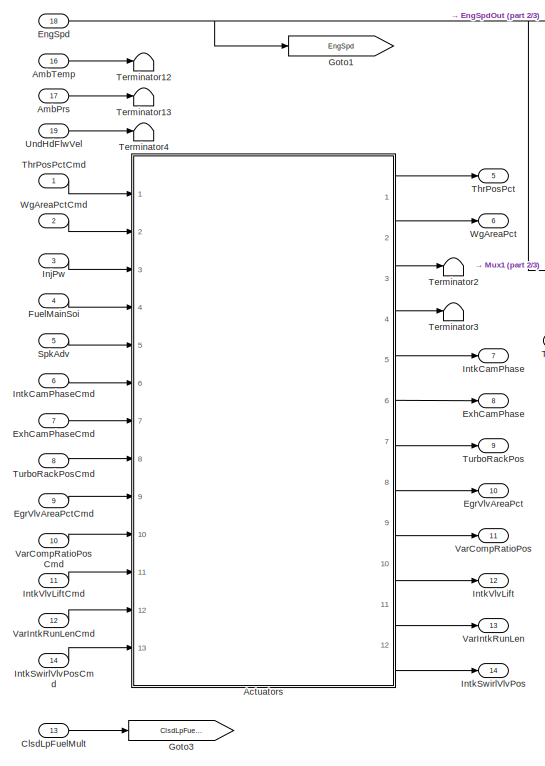
[diagram: root canvas - part 1/3, middle left region]
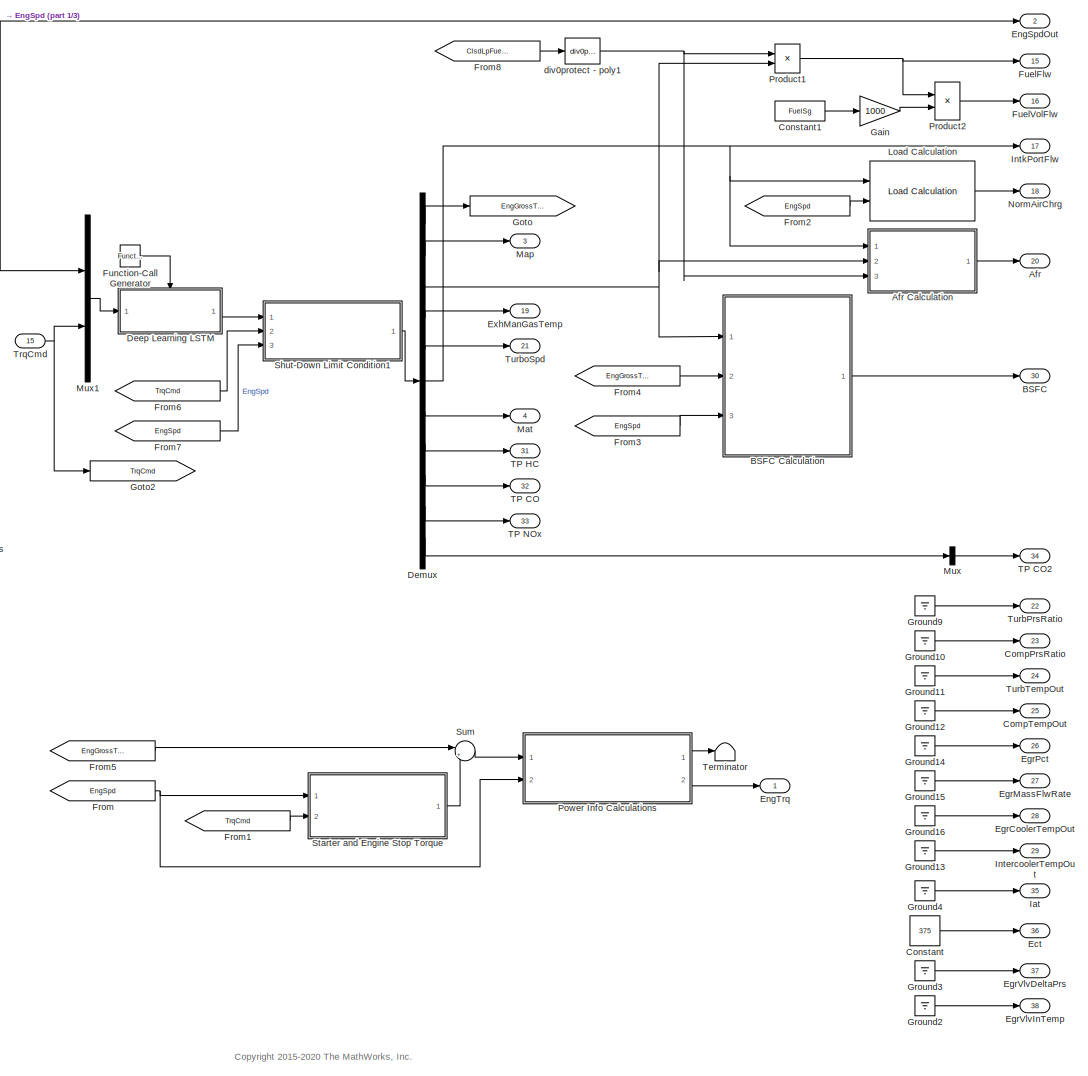
[diagram: root canvas - part 2/3, center side, full height]
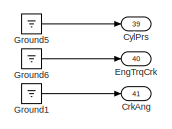
[diagram: root canvas - part 3/3, middle right region]
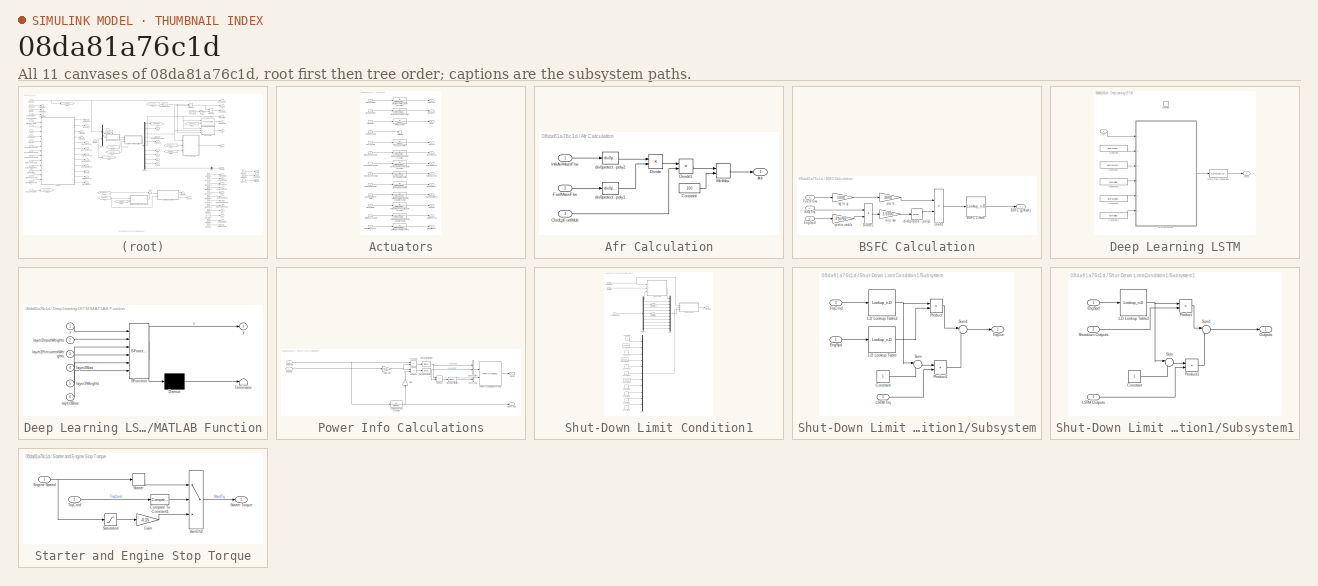
[diagram: thumbnail index - all 11 canvases of the model, root first then tree order]
MODEL slx_08da81a76c1d
KIND model
CONFIG AbsTol = auto
CONFIG EnableMultiTasking = on
CONFIG FixedStep = 0.03
CONFIG MaxStep = auto
CONFIG MinStep = auto
CONFIG RelTol = 1e-3
CONFIG SampleTimeConstraint = Unconstrained
CONFIG SolverName = VariableStepAuto
CONFIG StartTime = 0.0
CONFIG StopTime = inf
WORKSPACE source: mxarray member
WORKSPACE AfrStoich = 14.6
WORKSPACE Cps = 2
WORKSPACE FuelSg = 0.75
WORKSPACE NCyl = 4
WORKSPACE Pstd = 101325
WORKSPACE Rair = 287
WORKSPACE TimeCnstECP = 0.01
WORKSPACE TimeCnstEGR = 0.01
WORKSPACE TimeCnstETC = 0.01
WORKSPACE TimeCnstICP = 0.01
WORKSPACE TimeCnstIVL = 0.125
WORKSPACE TimeCnstMFA = 0.125
WORKSPACE TimeCnstSWVA = 0.125
WORKSPACE TimeCnstVCR = 0.125
WORKSPACE TimeCnstVGT = 0.15
WORKSPACE TimeCnstVIRL = 0.125
WORKSPACE TimeCnstWGA = 0.01
WORKSPACE Ts = 0.01
WORKSPACE Tstd = 293.15
WORKSPACE Vd = 0.0015
WORKSPACE layer2Bias = [-0.102818198502 -0.0669189542532 -0.0175336152315 -0.0613032355905 -0.0570961982012 -0.061625469476 -0.0630445405841 -0.102546460927 -0.0423759259284 -0.0306564457715 -0.0652378797531 -0.129787817597 ... (800 elements, 800x1)]
WORKSPACE layer2InputWeights = [-0.0867959260941 0.0265881456435 -0.00261938013136 0.0648385435343 -0.0334306880832 -0.044301789254 0.0604524612427 0.00893297791481 -0.0994751527905 0.0255589019507 -0.122370123863 -0.0740034654737 ... (1600 elements, 800x2)]
WORKSPACE layer2RecurrentWeights = [-0.015235141851 -0.11403311789 0.112884886563 0.0588350631297 0.0682250186801 0.0444636531174 -0.0968889594078 -0.0397337339818 -0.0227067749947 0.0294026453048 -0.0304179247469 -0.145884677768 ... (160000 elements, 800x200)]
WORKSPACE layer3Bias = [0.0529259070754 0.0636636316776 0.0140457563102 0.0780845806003 0.0347621031106 -0.023198319599 -0.0368600413203 -0.00711429771036 -0.0257519558072 0.0254531633109 0.0144603000954]
WORKSPACE layer3Weights = [0.0566984564066 0.0242331400514 0.158808469772 0.0399505831301 -0.0030719502829 0.0837587192655 0.0579013302922 -0.0333247296512 -0.120384372771 -0.125806882977 0.0938690528274 -0.052338026464 ... (2200 elements, 11x200)]
WORKSPACE muX = [2220.83734119 107.92815484]
WORKSPACE muY = [104.671657967 115562.072489 0.00224719893222 986.056400633 7383.06398882 0.0299760704621 325.741103054 5.88867806863e-05 0.000942478781448 3.56158507349e-05 0.00543639293543]
WORKSPACE sigX = [1470.27383875 63.5647381428]
WORKSPACE sigY = [65.6275263528 46686.4071583 0.00207427504126 224.539922164 5111.0011239 0.0252132241042 8.06209455442 0.000125926264941 0.00171123843744 4.89959895827e-05 0.00480295587248]
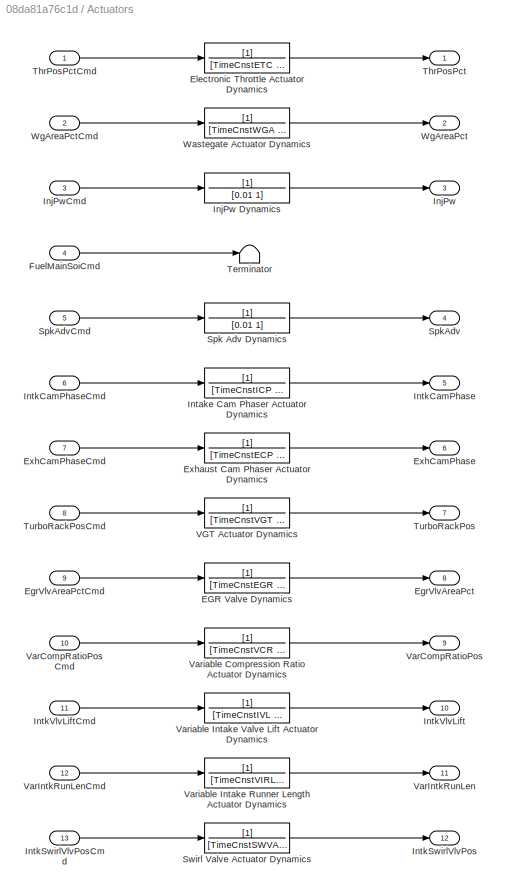
BLOCK [SubSystem] Actuators
  Ports = [13, 12]
  RequestExecContextInheritance = off
BLOCK [TransferFcn] Actuators/EGR Valve Dynamics
  Denominator = [TimeCnstEGR 1]
BLOCK [Outport] Actuators/EgrVlvAreaPct
  Port = 8
  Unit = %
  VectorParamsAs1DForOutWhenUnconnected = off
BLOCK [Inport] Actuators/EgrVlvAreaPctCmd
  Port = 9
  Unit = %
BLOCK [TransferFcn] Actuators/Electronic Throttle Actuator Dynamics
  Denominator = [TimeCnstETC 1]
BLOCK [Outport] Actuators/ExhCamPhase
  Port = 6
  Unit = deg
  VectorParamsAs1DForOutWhenUnconnected = off
BLOCK [Inport] Actuators/ExhCamPhaseCmd
  Port = 7
  Unit = deg
BLOCK [TransferFcn] Actuators/Exhaust Cam Phaser Actuator Dynamics
  Denominator = [TimeCnstECP 1]
BLOCK [Inport] Actuators/FuelMainSoiCmd
  Port = 4
  Unit = deg
BLOCK [Outport] Actuators/InjPw
  Port = 3
  VectorParamsAs1DForOutWhenUnconnected = off
BLOCK [TransferFcn] Actuators/InjPw Dynamics
  Denominator = [0.01 1]
BLOCK [Inport] Actuators/InjPwCmd
  Port = 3
  Unit = ms
BLOCK [TransferFcn] Actuators/Intake Cam Phaser Actuator Dynamics
  Denominator = [TimeCnstICP 1]
BLOCK [Outport] Actuators/IntkCamPhase
  Port = 5
  Unit = deg
  VectorParamsAs1DForOutWhenUnconnected = off
BLOCK [Inport] Actuators/IntkCamPhaseCmd
  Port = 6
  Unit = deg
BLOCK [Outport] Actuators/IntkSwirlVlvPos
  Port = 12
  VectorParamsAs1DForOutWhenUnconnected = off
BLOCK [Inport] Actuators/IntkSwirlVlvPosCmd
  Port = 13
BLOCK [Outport] Actuators/IntkVlvLift
  Port = 10
  VectorParamsAs1DForOutWhenUnconnected = off
BLOCK [Inport] Actuators/IntkVlvLiftCmd
  Port = 11
BLOCK [TransferFcn] Actuators/Spk Adv Dynamics
  Denominator = [0.01 1]
BLOCK [Outport] Actuators/SpkAdv
  Port = 4
  VectorParamsAs1DForOutWhenUnconnected = off
BLOCK [Inport] Actuators/SpkAdvCmd
  Port = 5
  Unit = deg
BLOCK [TransferFcn] Actuators/Swirl Valve Actuator Dynamics
  Denominator = [TimeCnstSWVA 1]
BLOCK [Terminator] Actuators/Terminator
BLOCK [Outport] Actuators/ThrPosPct
  Unit = %
  VectorParamsAs1DForOutWhenUnconnected = off
BLOCK [Inport] Actuators/ThrPosPctCmd
  Unit = %
  VarSizeSig = No
BLOCK [Outport] Actuators/TurboRackPos
  Port = 7
  Unit = 1
  VectorParamsAs1DForOutWhenUnconnected = off
BLOCK [Inport] Actuators/TurboRackPosCmd
  Port = 8
  Unit = 1
BLOCK [TransferFcn] Actuators/VGT Actuator Dynamics
  Denominator = [TimeCnstVGT 1]
BLOCK [Outport] Actuators/VarCompRatioPos
  Port = 9
  VectorParamsAs1DForOutWhenUnconnected = off
BLOCK [Inport] Actuators/VarCompRatioPosCmd
  Port = 10
BLOCK [Outport] Actuators/VarIntkRunLen
  Port = 11
  VectorParamsAs1DForOutWhenUnconnected = off
BLOCK [Inport] Actuators/VarIntkRunLenCmd
  Port = 12
BLOCK [TransferFcn] Actuators/Variable Compression Ratio Actuator Dynamics
  Denominator = [TimeCnstVCR 1]
BLOCK [TransferFcn] Actuators/Variable Intake Runner Length Actuator Dynamics
  Denominator = [TimeCnstVIRL 1]
BLOCK [TransferFcn] Actuators/Variable Intake Valve Lift Actuator Dynamics
  Denominator = [TimeCnstIVL 1]
BLOCK [TransferFcn] Actuators/Wastegate Actuator Dynamics
  Denominator = [TimeCnstWGA 1]
BLOCK [Outport] Actuators/WgAreaPct
  Port = 2
  Unit = %
  VectorParamsAs1DForOutWhenUnconnected = off
BLOCK [Inport] Actuators/WgAreaPctCmd
  Port = 2
  Unit = %
BLOCK [Outport] Afr
  Port = 20
  Unit = 1
  VectorParamsAs1DForOutWhenUnconnected = off
BLOCK [SubSystem] Afr Calculation
  Ports = [3, 1]
  RequestExecContextInheritance = off
BLOCK [Outport] Afr Calculation/Afr
  Unit = 1
  VectorParamsAs1DForOutWhenUnconnected = off
BLOCK [Inport] Afr Calculation/ClsdLpFuelMult
  Port = 3
  Unit = kg/s
BLOCK [Constant] Afr Calculation/Constant
  Value = 100
BLOCK [Product] Afr Calculation/Divide
  Inputs = */
  Ports = [2, 1]
BLOCK [Product] Afr Calculation/Divide1
  Inputs = */
  Ports = [2, 1]
BLOCK [Inport] Afr Calculation/FuelMassFlw
  Port = 2
  Unit = kg/s
BLOCK [Inport] Afr Calculation/IntkAirMassFlw
  Unit = kg/s
BLOCK [MinMax] Afr Calculation/MinMax
  Inputs = 2
  Ports = [2, 1]
  ZeroCross = off
BLOCK [Reference] Afr Calculation/div0protect - poly1  REF=autolibutils/div0protect - poly
  Ports = [1, 1]
  SourceBlock = autolibutils/div0protect - poly
  SourceProductBaseCode = PW,DR,MT,UV,VE
BLOCK [Reference] Afr Calculation/div0protect - poly2  REF=autolibutils/div0protect - poly
  Ports = [1, 1]
  SourceBlock = autolibutils/div0protect - poly
  SourceProductBaseCode = PW,DR,MT,UV,VE
BLOCK [Inport] AmbPrs
  Port = 17
  Unit = Pa
BLOCK [Inport] AmbTemp
  Port = 16
  Unit = K
BLOCK [Outport] BSFC
  Port = 30
  Unit = g/(kW*hr)
  VectorParamsAs1DForOutWhenUnconnected = off
BLOCK [SubSystem] BSFC Calculation
  Ports = [3, 1]
  RequestExecContextInheritance = off
BLOCK [Outport] BSFC Calculation/BSFC (g//Kwh)
  VectorParamsAs1DForOutWhenUnconnected = off
BLOCK [Lookup_n-D] BSFC Calculation/BSFC Limits
  BreakpointsForDimension1 = [0 500]
  ExtrapMethod = Clip
  InputPortMap = u0
  InternalRulePriority = Speed
  NumberOfTableDimensions = 1
  Ports = [1, 1]
  RndMeth = Simplest
  Table = [0 500]
BLOCK [Product] BSFC Calculation/Divide
  Inputs = */
  Ports = [2, 1]
BLOCK [Product] BSFC Calculation/Divide1
  Inputs = **
  Ports = [2, 1]
BLOCK [Inport] BSFC Calculation/EngSpd
  Port = 3
BLOCK [Inport] BSFC Calculation/EngTrq
  Port = 2
BLOCK [Inport] BSFC Calculation/FuelFlow
BLOCK [Reference] BSFC Calculation/div0protect - poly1  REF=autolibutils/div0protect - poly
  Ports = [1, 1]
  SourceBlock = autolibutils/div0protect - poly
  SourceProductBaseCode = PW,DR,MT,UV,VE
BLOCK [Gain] BSFC Calculation/kg to g
  Gain = 1000
BLOCK [Gain] BSFC Calculation/rpm to rad//s
  Gain = 2*pi/60
BLOCK [Gain] BSFC Calculation/s to h
  Gain = 3600
BLOCK [Gain] BSFC Calculation/w to kw
  Gain = 1/1000
BLOCK [Inport] ClsdLpFuelMult
  Port = 13
  Unit = 1
BLOCK [Outport] CompPrsRatio
  Port = 23
  Unit = 1
  VectorParamsAs1DForOutWhenUnconnected = off
BLOCK [Outport] CompTempOut
  Port = 25
  Unit = K
  VectorParamsAs1DForOutWhenUnconnected = off
BLOCK [Constant] Constant
  Value = 375
BLOCK [Constant] Constant1
  Value = FuelSg
BLOCK [Outport] CrkAng
  Port = 41
  VectorParamsAs1DForOutWhenUnconnected = off
BLOCK [Outport] CylPrs
  Port = 39
  VectorParamsAs1DForOutWhenUnconnected = off
BLOCK [SubSystem] Deep Learning LSTM
  Ports = [1, 1, 0, 1]
  RequestExecContextInheritance = off
  TreatAsAtomicUnit = on
BLOCK [Constant] Deep Learning LSTM/Constant
  Value = layer2InputWeights
BLOCK [Constant] Deep Learning LSTM/Constant1
  Value = layer2RecurrentWeights
BLOCK [Constant] Deep Learning LSTM/Constant2
  Value = layer2Bias
BLOCK [Constant] Deep Learning LSTM/Constant3
  Value = layer3Weights
BLOCK [Constant] Deep Learning LSTM/Constant4
  Value = layer3Bias
BLOCK [DataTypeConversion] Deep Learning LSTM/Data Type Conversion
  OutDataTypeStr = double
  RndMeth = Floor
  SaturateOnIntegerOverflow = off
BLOCK [Inport] Deep Learning LSTM/In1
BLOCK [SubSystem] Deep Learning LSTM/MATLAB Function
  ErrorFcn = Stateflow.Translate.translate
  PermitHierarchicalResolution = ExplicitOnly
  Ports = [6, 1]
  RequestExecContextInheritance = off
  SFBlockType = MATLAB Function
  TreatAsAtomicUnit = on
BLOCK [Demux] Deep Learning LSTM/MATLAB Function/ Demux 
  Outputs = 1
  Ports = [1, 1]
BLOCK [S-Function] Deep Learning LSTM/MATLAB Function/ SFunction 
  EnableBusSupport = off
  FunctionName = sf_sfun
  Parameters = muX,muY,sigX,sigY
  PortCounts = [6 2]
  Ports = [6, 2]
  SFcnIsStateOwnerBlock = off
  SFunctionDeploymentMode = off
  Tag = Stateflow S-Function 1
BLOCK [Terminator] Deep Learning LSTM/MATLAB Function/ Terminator 
BLOCK [Inport] Deep Learning LSTM/MATLAB Function/layer2Bias
  Port = 4
BLOCK [Inport] Deep Learning LSTM/MATLAB Function/layer2InputWeights
  Port = 2
BLOCK [Inport] Deep Learning LSTM/MATLAB Function/layer2RecurrentWeights
  Port = 3
BLOCK [Inport] Deep Learning LSTM/MATLAB Function/layer3Bias
  Port = 6
BLOCK [Inport] Deep Learning LSTM/MATLAB Function/layer3Weights
  Port = 5
BLOCK [Inport] Deep Learning LSTM/MATLAB Function/x
BLOCK [Outport] Deep Learning LSTM/MATLAB Function/y
  VectorParamsAs1DForOutWhenUnconnected = off
BLOCK [Outport] Deep Learning LSTM/Out1
  VectorParamsAs1DForOutWhenUnconnected = off
BLOCK [TriggerPort] Deep Learning LSTM/function
  Ports = []
  StatesWhenEnabling = held
  TriggerType = function-call
  VariantControl = Variant
BLOCK [Demux] Demux
  Outputs = 11
  Ports = [1, 11]
BLOCK [Outport] Ect
  Port = 36
  Unit = K
  VectorParamsAs1DForOutWhenUnconnected = off
BLOCK [Outport] EgrCoolerTempOut
  Port = 28
  Unit = K
  VectorParamsAs1DForOutWhenUnconnected = off
BLOCK [Outport] EgrMassFlwRate
  Port = 27
  Unit = kg/s
  VectorParamsAs1DForOutWhenUnconnected = off
BLOCK [Outport] EgrPct
  Port = 26
  Unit = %
  VectorParamsAs1DForOutWhenUnconnected = off
BLOCK [Outport] EgrVlvAreaPct
  Port = 10
  VectorParamsAs1DForOutWhenUnconnected = off
BLOCK [Inport] EgrVlvAreaPctCmd
  Port = 9
BLOCK [Outport] EgrVlvDeltaPrs
  Port = 37
  Unit = Pa
  VectorParamsAs1DForOutWhenUnconnected = off
BLOCK [Outport] EgrVlvInTemp
  Port = 38
  Unit = K
  VectorParamsAs1DForOutWhenUnconnected = off
BLOCK [Inport] EngSpd
  Interpolate = off
  Port = 18
BLOCK [Outport] EngSpdOut
  Port = 2
  VectorParamsAs1DForOutWhenUnconnected = off
BLOCK [Outport] EngTrq
  Unit = N*m
  VectorParamsAs1DForOutWhenUnconnected = off
BLOCK [Outport] EngTrqCrk
  Port = 40
  VectorParamsAs1DForOutWhenUnconnected = off
BLOCK [Outport] ExhCamPhase
  Port = 8
  VectorParamsAs1DForOutWhenUnconnected = off
BLOCK [Inport] ExhCamPhaseCmd
  Port = 7
BLOCK [Outport] ExhManGasTemp
  Port = 19
  Unit = K
  VectorParamsAs1DForOutWhenUnconnected = off
BLOCK [From] From
  GotoTag = EngSpd
BLOCK [From] From1
  GotoTag = TrqCmd
BLOCK [From] From2
  GotoTag = EngSpd
BLOCK [From] From3
  GotoTag = EngSpd
BLOCK [From] From4
  GotoTag = EngGrossTrq
BLOCK [From] From5
  GotoTag = EngGrossTrq
BLOCK [From] From6
  GotoTag = TrqCmd
BLOCK [From] From7
  GotoTag = EngSpd
BLOCK [From] From8
  GotoTag = ClsdLpFuelMult
BLOCK [Outport] FuelFlw
  Port = 15
  Unit = kg/s
  VectorParamsAs1DForOutWhenUnconnected = off
BLOCK [Inport] FuelMainSoi
  Port = 4
BLOCK [Outport] FuelVolFlw
  Port = 16
  Unit = m^3/s
  VectorParamsAs1DForOutWhenUnconnected = off
BLOCK [Reference] Function-Call Generator  REF=simulink/Ports &
Subsystems/Function-Call
Generator
  Ports = [0, 1]
  SourceBlock = simulink/Ports &\nSubsystems/Function-Call\nGenerator
  SourceProductBaseCode = SL
  SourceType = Function-Call Generator
BLOCK [Gain] Gain
  Gain = 1000
BLOCK [Goto] Goto
  GotoTag = EngGrossTrq
BLOCK [Goto] Goto1
  GotoTag = EngSpd
BLOCK [Goto] Goto2
  GotoTag = TrqCmd
BLOCK [Goto] Goto3
  GotoTag = ClsdLpFuelMult
BLOCK [Ground] Ground1
BLOCK [Ground] Ground10
BLOCK [Ground] Ground11
BLOCK [Ground] Ground12
BLOCK [Ground] Ground13
BLOCK [Ground] Ground14
BLOCK [Ground] Ground15
BLOCK [Ground] Ground16
BLOCK [Ground] Ground2
BLOCK [Ground] Ground3
BLOCK [Ground] Ground4
BLOCK [Ground] Ground5
BLOCK [Ground] Ground6
BLOCK [Ground] Ground9
BLOCK [Outport] Iat
  Port = 35
  Unit = K
  VectorParamsAs1DForOutWhenUnconnected = off
BLOCK [Inport] InjPw
  Port = 3
BLOCK [Outport] IntercoolerTempOut
  Port = 29
  Unit = K
  VectorParamsAs1DForOutWhenUnconnected = off
BLOCK [Outport] IntkCamPhase
  Port = 7
  VectorParamsAs1DForOutWhenUnconnected = off
BLOCK [Inport] IntkCamPhaseCmd
  Port = 6
BLOCK [Outport] IntkPortFlw
  Port = 17
  Unit = kg/s
  VectorParamsAs1DForOutWhenUnconnected = off
BLOCK [Outport] IntkSwirlVlvPos
  Port = 14
  VectorParamsAs1DForOutWhenUnconnected = off
BLOCK [Inport] IntkSwirlVlvPosCmd
  Port = 14
BLOCK [Outport] IntkVlvLift
  Port = 12
  VectorParamsAs1DForOutWhenUnconnected = off
BLOCK [Inport] IntkVlvLiftCmd
  Port = 11
BLOCK [Reference] Load Calculation  REF=autolibsharedmappedenginescommon/Load Calculation
  Ports = [2, 1]
  SourceBlock = autolibsharedmappedenginescommon/Load Calculation
  SourceProductBaseCode = PW,DR,MT,UV,VE
  SourceType = SubSystem
BLOCK [Outport] Map
  Port = 3
  Unit = Pa
  VectorParamsAs1DForOutWhenUnconnected = off
BLOCK [Outport] Mat
  Port = 4
  Unit = K
  VectorParamsAs1DForOutWhenUnconnected = off
BLOCK [Mux] Mux
  DisplayOption = bar
  Inputs = 1
  Ports = [1, 1]
BLOCK [Mux] Mux1
  DisplayOption = bar
  Inputs = 2
  Ports = [2, 1]
BLOCK [Outport] NormAirChrg
  Port = 18
  Unit = 1
  VectorParamsAs1DForOutWhenUnconnected = off
BLOCK [SubSystem] Power Info Calculations
  Ports = [2, 2]
  RequestExecContextInheritance = off
BLOCK [BusCreator] Power Info Calculations/Bus Creator
  DisplayOption = bar
  InheritFromInputs = on
  Inputs = 1
  Ports = [1, 1]
BLOCK [BusCreator] Power Info Calculations/Bus Creator1
  DisplayOption = bar
  InheritFromInputs = on
  Inputs = 2
  Ports = [2, 1]
BLOCK [Inport] Power Info Calculations/EngSpd
  Port = 2
BLOCK [Inport] Power Info Calculations/EngTrqIn
BLOCK [Outport] Power Info Calculations/EngTrqOut
  Port = 2
  Unit = N*m
  VectorParamsAs1DForOutWhenUnconnected = off
BLOCK [Gain] Power Info Calculations/Gain
  Gain = -1
  NameLocation = right
BLOCK [TransferFcn] Power Info Calculations/Lumped Torque Dynamics
  Denominator = [0.003 1]
BLOCK [Reference] Power Info Calculations/Power Accounting Bus Creator  REF=autolibpowerinfoutils/Power Accounting Bus Creator
  Ports = [2, 1]
  SourceBlock = autolibpowerinfoutils/Power Accounting Bus Creator
  SourceProductBaseCode = PW,DR,MT,UV,VE
  SourceType = Power Accounting Bus Creator
BLOCK [Product] Power Info Calculations/Product
  Ports = [2, 1]
BLOCK [Product] Power Info Calculations/Product1
  Ports = [2, 1]
BLOCK [Outport] Power Info Calculations/PwrInfo
  VectorParamsAs1DForOutWhenUnconnected = off
BLOCK [SignalSpecification] Power Info Calculations/Signal Specification
  Unit = W
BLOCK [SignalSpecification] Power Info Calculations/Signal Specification1
  Unit = W
BLOCK [SignalSpecification] Power Info Calculations/Signal Specification2
  Unit = W
BLOCK [Sum] Power Info Calculations/Subtract
  IconShape = rectangular
  Inputs = --
  Ports = [2, 1]
BLOCK [Gain] Power Info Calculations/rpm to rad//s1
  Gain = pi/30
BLOCK [Product] Product1
  Ports = [2, 1]
BLOCK [Product] Product2
  Inputs = */
  Ports = [2, 1]
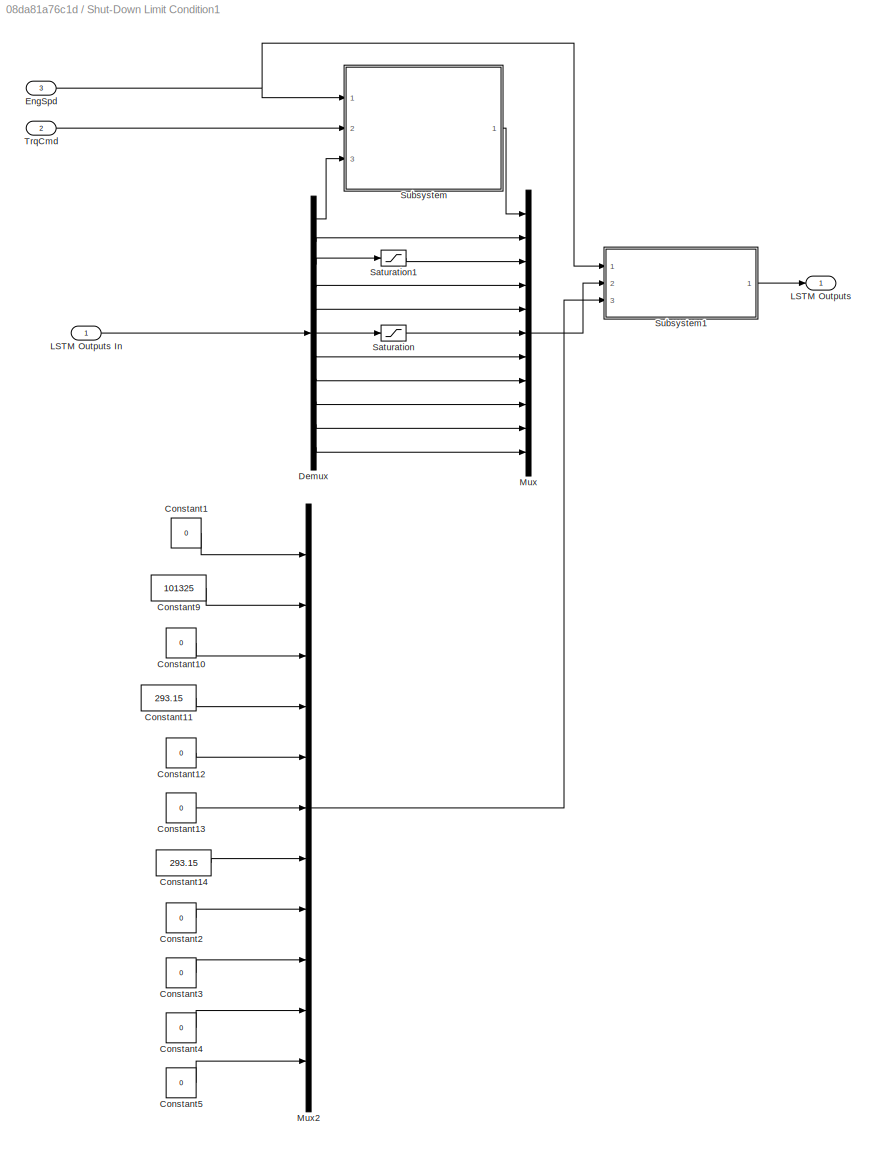
BLOCK [SubSystem] Shut-Down Limit Condition1
  Ports = [3, 1]
  RequestExecContextInheritance = off
BLOCK [Constant] Shut-Down Limit Condition1/Constant1
  Value = 0
BLOCK [Constant] Shut-Down Limit Condition1/Constant10
  Value = 0
BLOCK [Constant] Shut-Down Limit Condition1/Constant11
  Value = 293.15
BLOCK [Constant] Shut-Down Limit Condition1/Constant12
  Value = 0
BLOCK [Constant] Shut-Down Limit Condition1/Constant13
  Value = 0
BLOCK [Constant] Shut-Down Limit Condition1/Constant14
  Value = 293.15
BLOCK [Constant] Shut-Down Limit Condition1/Constant2
  Value = 0
BLOCK [Constant] Shut-Down Limit Condition1/Constant3
  Value = 0
BLOCK [Constant] Shut-Down Limit Condition1/Constant4
  Value = 0
BLOCK [Constant] Shut-Down Limit Condition1/Constant5
  Value = 0
BLOCK [Constant] Shut-Down Limit Condition1/Constant9
  Value = 101325
BLOCK [Demux] Shut-Down Limit Condition1/Demux
  Outputs = 11
  Ports = [1, 11]
BLOCK [Inport] Shut-Down Limit Condition1/EngSpd
  Port = 3
BLOCK [Outport] Shut-Down Limit Condition1/LSTM Outputs
  VectorParamsAs1DForOutWhenUnconnected = off
BLOCK [Inport] Shut-Down Limit Condition1/LSTM Outputs In
BLOCK [Mux] Shut-Down Limit Condition1/Mux
  DisplayOption = bar
  Inputs = 11
  Ports = [11, 1]
BLOCK [Mux] Shut-Down Limit Condition1/Mux2
  DisplayOption = bar
  Inputs = 11
  Ports = [11, 1]
BLOCK [Saturate] Shut-Down Limit Condition1/Saturation
  LowerLimit = 0
  UpperLimit = inf
BLOCK [Saturate] Shut-Down Limit Condition1/Saturation1
  LowerLimit = 0
  UpperLimit = inf
BLOCK [SubSystem] Shut-Down Limit Condition1/Subsystem
  Ports = [3, 1]
  RequestExecContextInheritance = off
BLOCK [Lookup_n-D] Shut-Down Limit Condition1/Subsystem/1-D Lookup Table
  BreakpointsForDimension1 = [0	750	1053.57142857143	1357.14285714286	1660.71428571429	1964.28571428571	2267.85714285714	2571.42857142857	2875	3178.57142857143	3482.14285714286	3785.71428571429	4089.28571428571	4392.85714285714	4696.42857142857	5000]
  ExtrapMethod = Clip
  InputPortMap = u0
  InternalRulePriority = Speed
  NumberOfTableDimensions = 1
  Ports = [1, 1]
  RndMeth = Simplest
  Table = [0	-9.29036880275297	-10.6228292739026	-11.9924964963700	-13.0118311605534	-14.0012727910098	-14.7810585236861	-15.7592347457006	-16.5866921936305	-17.2855138761427	-18.0323141674096	-18.7301010682725	-19.4167284926662	-20.1293721332724	-20.8757603607253	-21.6717938972620]
BLOCK [Lookup_n-D] Shut-Down Limit Condition1/Subsystem/1-D Lookup Table2
  BreakpointsForDimension1 = [0 1]*1e-6
  ExtrapMethod = Clip
  InputPortMap = u0
  InternalRulePriority = Speed
  NumberOfTableDimensions = 1
  Ports = [1, 1]
  RndMeth = Simplest
  Table = [1 0]
BLOCK [Constant] Shut-Down Limit Condition1/Subsystem/Constant
BLOCK [Inport] Shut-Down Limit Condition1/Subsystem/EngSpd
BLOCK [Inport] Shut-Down Limit Condition1/Subsystem/LSTM Trq
  Port = 3
BLOCK [Product] Shut-Down Limit Condition1/Subsystem/Product
  Ports = [2, 1]
BLOCK [Product] Shut-Down Limit Condition1/Subsystem/Product1
  Ports = [2, 1]
BLOCK [Sum] Shut-Down Limit Condition1/Subsystem/Sum
  Inputs = |-+
  Ports = [2, 1]
BLOCK [Sum] Shut-Down Limit Condition1/Subsystem/Sum1
  Inputs = |++
  Ports = [2, 1]
BLOCK [Inport] Shut-Down Limit Condition1/Subsystem/TrqCmd
  Port = 2
BLOCK [Outport] Shut-Down Limit Condition1/Subsystem/TrqOut
  VectorParamsAs1DForOutWhenUnconnected = off
BLOCK [SubSystem] Shut-Down Limit Condition1/Subsystem1
  Ports = [3, 1]
  RequestExecContextInheritance = off
BLOCK [Lookup_n-D] Shut-Down Limit Condition1/Subsystem1/1-D Lookup Table2
  BreakpointsForDimension1 = [0 1]
  ExtrapMethod = Clip
  InputPortMap = u0
  InternalRulePriority = Speed
  NumberOfTableDimensions = 1
  Ports = [1, 1]
  RndMeth = Simplest
  Table = [1 0]
BLOCK [Constant] Shut-Down Limit Condition1/Subsystem1/Constant
BLOCK [Inport] Shut-Down Limit Condition1/Subsystem1/EngSpd
BLOCK [Inport] Shut-Down Limit Condition1/Subsystem1/LSTM Outputs
  Port = 2
BLOCK [Outport] Shut-Down Limit Condition1/Subsystem1/Outputs
  VectorParamsAs1DForOutWhenUnconnected = off
BLOCK [Product] Shut-Down Limit Condition1/Subsystem1/Product
  Ports = [2, 1]
BLOCK [Product] Shut-Down Limit Condition1/Subsystem1/Product1
  Ports = [2, 1]
BLOCK [Inport] Shut-Down Limit Condition1/Subsystem1/Shutdown Outputs
  Port = 3
BLOCK [Sum] Shut-Down Limit Condition1/Subsystem1/Sum
  Inputs = |-+
  Ports = [2, 1]
BLOCK [Sum] Shut-Down Limit Condition1/Subsystem1/Sum1
  Inputs = |++
  Ports = [2, 1]
BLOCK [Inport] Shut-Down Limit Condition1/TrqCmd
  Port = 2
BLOCK [Inport] SpkAdv
  Port = 5
BLOCK [SubSystem] Starter and Engine Stop Torque
  Ports = [2, 1]
  RequestExecContextInheritance = off
BLOCK [Reference] Starter and Engine Stop Torque/Compare To Constant1  REF=simulink/Logic and Bit
Operations/Compare
To Constant
  Ports = [1, 1]
  SourceBlock = simulink/Logic and Bit\nOperations/Compare\nTo Constant
  SourceProductBaseCode = SL
  SourceType = Compare To Constant
BLOCK [Inport] Starter and Engine Stop Torque/Engine Speed
BLOCK [Gain] Starter and Engine Stop Torque/Gain
  Gain = -0.15
BLOCK [Saturate] Starter and Engine Stop Torque/Saturation
  LowerLimit = -100
  UpperLimit = 100
BLOCK [Relay] Starter and Engine Stop Torque/Starter
  OffOutputValue = 20
  OffSwitchValue = 150
  OnOutputValue = 0
  OnSwitchValue = 300
BLOCK [Outport] Starter and Engine Stop Torque/Starter Torque
  VectorParamsAs1DForOutWhenUnconnected = off
BLOCK [Switch] Starter and Engine Stop Torque/Switch2
  Criteria = u2 ~= 0
  InputSameDT = off
  SaturateOnIntegerOverflow = off
BLOCK [Inport] Starter and Engine Stop Torque/TrqCmd
  Port = 2
BLOCK [Sum] Sum
  Inputs = |++
  Ports = [2, 1]
BLOCK [Outport] TP CO
  Port = 32
  Unit = kg/s
  VectorParamsAs1DForOutWhenUnconnected = off
BLOCK [Outport] TP CO2
  Port = 34
  Unit = kg/s
  VectorParamsAs1DForOutWhenUnconnected = off
BLOCK [Outport] TP HC
  Port = 31
  Unit = kg/s
  VectorParamsAs1DForOutWhenUnconnected = off
BLOCK [Outport] TP NOx
  Port = 33
  Unit = kg/s
  VectorParamsAs1DForOutWhenUnconnected = off
BLOCK [Terminator] Terminator
BLOCK [Terminator] Terminator12
BLOCK [Terminator] Terminator13
BLOCK [Terminator] Terminator2
BLOCK [Terminator] Terminator3
BLOCK [Terminator] Terminator4
BLOCK [Outport] ThrPosPct
  Port = 5
  VectorParamsAs1DForOutWhenUnconnected = off
BLOCK [Inport] ThrPosPctCmd
  VarSizeSig = No
BLOCK [Inport] TrqCmd
  Port = 15
  Unit = N*m
BLOCK [Outport] TurbPrsRatio
  Port = 22
  Unit = 1
  VectorParamsAs1DForOutWhenUnconnected = off
BLOCK [Outport] TurbTempOut
  Port = 24
  Unit = K
  VectorParamsAs1DForOutWhenUnconnected = off
BLOCK [Outport] TurboRackPos
  Port = 9
  VectorParamsAs1DForOutWhenUnconnected = off
BLOCK [Inport] TurboRackPosCmd
  Port = 8
BLOCK [Outport] TurboSpd
  Port = 21
  Unit = rad/s
  VectorParamsAs1DForOutWhenUnconnected = off
BLOCK [Inport] UndHdFlwVel
  Port = 19
  Unit = m/s
BLOCK [Outport] VarCompRatioPos
  Port = 11
  VectorParamsAs1DForOutWhenUnconnected = off
BLOCK [Inport] VarCompRatioPosCmd
  Port = 10
BLOCK [Outport] VarIntkRunLen
  Port = 13
  VectorParamsAs1DForOutWhenUnconnected = off
BLOCK [Inport] VarIntkRunLenCmd
  Port = 12
BLOCK [Outport] WgAreaPct
  Port = 6
  VectorParamsAs1DForOutWhenUnconnected = off
BLOCK [Inport] WgAreaPctCmd
  Port = 2
BLOCK [Reference] div0protect - poly1  REF=autolibutils/div0protect - poly
  Ports = [1, 1]
  SourceBlock = autolibutils/div0protect - poly
  SourceProductBaseCode = PW,DR,MT,UV,VE
ANNOTATION (root): <copyright redacted>
LINE Actuators/EGR Valve Dynamics:1 -> Actuators/EgrVlvAreaPct:1
LINE Actuators/EgrVlvAreaPctCmd:1 -> Actuators/EGR Valve Dynamics:1
LINE Actuators/Electronic Throttle Actuator Dynamics:1 -> Actuators/ThrPosPct:1
LINE Actuators/ExhCamPhaseCmd:1 -> Actuators/Exhaust Cam Phaser Actuator Dynamics:1
LINE Actuators/Exhaust Cam Phaser Actuator Dynamics:1 -> Actuators/ExhCamPhase:1
LINE Actuators/FuelMainSoiCmd:1 -> Actuators/Terminator:1
LINE Actuators/InjPw Dynamics:1 -> Actuators/InjPw:1
LINE Actuators/InjPwCmd:1 -> Actuators/InjPw Dynamics:1
LINE Actuators/Intake Cam Phaser Actuator Dynamics:1 -> Actuators/IntkCamPhase:1
LINE Actuators/IntkCamPhaseCmd:1 -> Actuators/Intake Cam Phaser Actuator Dynamics:1
LINE Actuators/IntkSwirlVlvPosCmd:1 -> Actuators/Swirl Valve Actuator Dynamics:1
LINE Actuators/IntkVlvLiftCmd:1 -> Actuators/Variable Intake Valve Lift Actuator Dynamics:1
LINE Actuators/Spk Adv Dynamics:1 -> Actuators/SpkAdv:1
LINE Actuators/SpkAdvCmd:1 -> Actuators/Spk Adv Dynamics:1
LINE Actuators/Swirl Valve Actuator Dynamics:1 -> Actuators/IntkSwirlVlvPos:1
LINE Actuators/ThrPosPctCmd:1 -> Actuators/Electronic Throttle Actuator Dynamics:1
LINE Actuators/TurboRackPosCmd:1 -> Actuators/VGT Actuator Dynamics:1
LINE Actuators/VGT Actuator Dynamics:1 -> Actuators/TurboRackPos:1
LINE Actuators/VarCompRatioPosCmd:1 -> Actuators/Variable Compression Ratio Actuator Dynamics:1
LINE Actuators/VarIntkRunLenCmd:1 -> Actuators/Variable Intake Runner Length Actuator Dynamics:1
LINE Actuators/Variable Compression Ratio Actuator Dynamics:1 -> Actuators/VarCompRatioPos:1
LINE Actuators/Variable Intake Runner Length Actuator Dynamics:1 -> Actuators/VarIntkRunLen:1
LINE Actuators/Variable Intake Valve Lift Actuator Dynamics:1 -> Actuators/IntkVlvLift:1
LINE Actuators/Wastegate Actuator Dynamics:1 -> Actuators/WgAreaPct:1
LINE Actuators/WgAreaPctCmd:1 -> Actuators/Wastegate Actuator Dynamics:1
LINE Actuators:1 -> ThrPosPct:1
LINE Actuators:10 -> IntkVlvLift:1
LINE Actuators:11 -> VarIntkRunLen:1
LINE Actuators:12 -> IntkSwirlVlvPos:1
LINE Actuators:2 -> WgAreaPct:1
LINE Actuators:3 -> Terminator2:1
LINE Actuators:4 -> Terminator3:1
LINE Actuators:5 -> IntkCamPhase:1
LINE Actuators:6 -> ExhCamPhase:1
LINE Actuators:7 -> TurboRackPos:1
LINE Actuators:8 -> EgrVlvAreaPct:1
LINE Actuators:9 -> VarCompRatioPos:1
LINE Afr Calculation/ClsdLpFuelMult:1 -> Afr Calculation/Divide1:2
LINE Afr Calculation/Constant:1 -> Afr Calculation/MinMax:2
LINE Afr Calculation/Divide1:1 -> Afr Calculation/MinMax:1
LINE Afr Calculation/Divide:1 -> Afr Calculation/Divide1:1
LINE Afr Calculation/FuelMassFlw:1 -> Afr Calculation/div0protect - poly1:1
LINE Afr Calculation/IntkAirMassFlw:1 -> Afr Calculation/div0protect - poly2:1
LINE Afr Calculation/MinMax:1 -> Afr Calculation/Afr:1
LINE Afr Calculation/div0protect - poly1:1 -> Afr Calculation/Divide:2
LINE Afr Calculation/div0protect - poly2:1 -> Afr Calculation/Divide:1
LINE Afr Calculation:1 -> Afr:1
LINE AmbPrs:1 -> Terminator13:1
LINE AmbTemp:1 -> Terminator12:1
LINE BSFC Calculation/BSFC Limits:1 -> BSFC Calculation/BSFC (g//Kwh):1
LINE BSFC Calculation/Divide1:1 -> BSFC Calculation/w to kw:1
LINE BSFC Calculation/Divide:1 -> BSFC Calculation/BSFC Limits:1
LINE BSFC Calculation/EngSpd:1 -> BSFC Calculation/rpm to rad//s:1
LINE BSFC Calculation/EngTrq:1 -> BSFC Calculation/Divide1:1
LINE BSFC Calculation/FuelFlow:1 -> BSFC Calculation/kg to g:1
LINE BSFC Calculation/div0protect - poly1:1 -> BSFC Calculation/Divide:2
LINE BSFC Calculation/kg to g:1 -> BSFC Calculation/s to h:1
LINE BSFC Calculation/rpm to rad//s:1 -> BSFC Calculation/Divide1:2
LINE BSFC Calculation/s to h:1 -> BSFC Calculation/Divide:1
LINE BSFC Calculation/w to kw:1 -> BSFC Calculation/div0protect - poly1:1
LINE BSFC Calculation:1 -> BSFC:1
LINE ClsdLpFuelMult:1 -> Goto3:1
LINE Constant1:1 -> Gain:1
LINE Constant:1 -> Ect:1
LINE Deep Learning LSTM/Constant1:1 -> Deep Learning LSTM/MATLAB Function:3
LINE Deep Learning LSTM/Constant2:1 -> Deep Learning LSTM/MATLAB Function:4
LINE Deep Learning LSTM/Constant3:1 -> Deep Learning LSTM/MATLAB Function:5
LINE Deep Learning LSTM/Constant4:1 -> Deep Learning LSTM/MATLAB Function:6
LINE Deep Learning LSTM/Constant:1 -> Deep Learning LSTM/MATLAB Function:2
LINE Deep Learning LSTM/Data Type Conversion:1 -> Deep Learning LSTM/Out1:1
LINE Deep Learning LSTM/In1:1 -> Deep Learning LSTM/MATLAB Function:1
LINE Deep Learning LSTM/MATLAB Function:1 -> Deep Learning LSTM/Data Type Conversion:1
LINE Deep Learning LSTM:1 -> Shut-Down Limit Condition1:1
LINE Demux:1 -> Goto:1
LINE Demux:10 -> TP NOx:1
LINE Demux:11 -> Mux:1
LINE Demux:2 -> Map:1
NET Demux:3 -> Afr Calculation:2, BSFC Calculation:1, Product1:2
LINE Demux:4 -> ExhManGasTemp:1
LINE Demux:5 -> TurboSpd:1
NET Demux:6 -> Afr Calculation:1, IntkPortFlw:1, Load Calculation:1
LINE Demux:7 -> Mat:1
LINE Demux:8 -> TP HC:1
LINE Demux:9 -> TP CO:1
LINE EgrVlvAreaPctCmd:1 -> Actuators:9
NET EngSpd:1 -> EngSpdOut:1, Goto1:1, Mux1:1
LINE ExhCamPhaseCmd:1 -> Actuators:7
LINE From1:1 -> Starter and Engine Stop Torque:2
LINE From2:1 -> Load Calculation:2
LINE From3:1 -> BSFC Calculation:3
LINE From4:1 -> BSFC Calculation:2
LINE From5:1 -> Sum:1
LINE From6:1 -> Shut-Down Limit Condition1:2
LINE From7:1 -> Shut-Down Limit Condition1:3
LINE From8:1 -> div0protect - poly1:1
NET From:1 -> Power Info Calculations:2, Starter and Engine Stop Torque:1
LINE FuelMainSoi:1 -> Actuators:4
LINE Function-Call Generator:1 -> Deep Learning LSTM:trigger
LINE Gain:1 -> Product2:2
LINE Ground10:1 -> CompPrsRatio:1
LINE Ground11:1 -> TurbTempOut:1
LINE Ground12:1 -> CompTempOut:1
LINE Ground13:1 -> IntercoolerTempOut:1
LINE Ground14:1 -> EgrPct:1
LINE Ground15:1 -> EgrMassFlwRate:1
LINE Ground16:1 -> EgrCoolerTempOut:1
LINE Ground1:1 -> CrkAng:1
LINE Ground2:1 -> EgrVlvInTemp:1
LINE Ground3:1 -> EgrVlvDeltaPrs:1
LINE Ground4:1 -> Iat:1
LINE Ground5:1 -> CylPrs:1
LINE Ground6:1 -> EngTrqCrk:1
LINE Ground9:1 -> TurbPrsRatio:1
LINE InjPw:1 -> Actuators:3
LINE IntkCamPhaseCmd:1 -> Actuators:6
LINE IntkSwirlVlvPosCmd:1 -> Actuators:13
LINE IntkVlvLiftCmd:1 -> Actuators:11
LINE Load Calculation:1 -> NormAirChrg:1
LINE Mux1:1 -> Deep Learning LSTM:1
LINE Mux:1 -> TP CO2:1
LINE Power Info Calculations/Bus Creator1:1 -> Power Info Calculations/Power Accounting Bus Creator:1
LINE Power Info Calculations/Bus Creator:1 -> Power Info Calculations/Power Accounting Bus Creator:2
LINE Power Info Calculations/EngSpd:1 -> Power Info Calculations/rpm to rad//s1:1
NET Power Info Calculations/EngTrqIn:1 -> Power Info Calculations/Lumped Torque Dynamics:1, Power Info Calculations/Product1:1
LINE Power Info Calculations/Gain:1 -> Power Info Calculations/Product:2
NET Power Info Calculations/Lumped Torque Dynamics:1 -> Power Info Calculations/EngTrqOut:1, Power Info Calculations/Gain:1
LINE Power Info Calculations/Power Accounting Bus Creator:1 -> Power Info Calculations/PwrInfo:1
LINE Power Info Calculations/Product1:1 -> Power Info Calculations/Signal Specification1:1
LINE Power Info Calculations/Product:1 -> Power Info Calculations/Signal Specification2:1
NET Power Info Calculations/Signal Specification1:1 -> Power Info Calculations/Bus Creator1:1, Power Info Calculations/Subtract:1
NET Power Info Calculations/Signal Specification2:1 -> Power Info Calculations/Bus Creator1:2, Power Info Calculations/Subtract:2
LINE Power Info Calculations/Signal Specification:1 -> Power Info Calculations/Bus Creator:1
LINE Power Info Calculations/Subtract:1 -> Power Info Calculations/Signal Specification:1
NET Power Info Calculations/rpm to rad//s1:1 -> Power Info Calculations/Product1:2, Power Info Calculations/Product:1
LINE Power Info Calculations:1 -> Terminator:1
LINE Power Info Calculations:2 -> EngTrq:1
NET Product1:1 -> FuelFlw:1, Product2:1
LINE Product2:1 -> FuelVolFlw:1
LINE Shut-Down Limit Condition1/Constant10:1 -> Shut-Down Limit Condition1/Mux2:3
LINE Shut-Down Limit Condition1/Constant11:1 -> Shut-Down Limit Condition1/Mux2:4
LINE Shut-Down Limit Condition1/Constant12:1 -> Shut-Down Limit Condition1/Mux2:5
LINE Shut-Down Limit Condition1/Constant13:1 -> Shut-Down Limit Condition1/Mux2:6
LINE Shut-Down Limit Condition1/Constant14:1 -> Shut-Down Limit Condition1/Mux2:7
LINE Shut-Down Limit Condition1/Constant1:1 -> Shut-Down Limit Condition1/Mux2:1
LINE Shut-Down Limit Condition1/Constant2:1 -> Shut-Down Limit Condition1/Mux2:8
LINE Shut-Down Limit Condition1/Constant3:1 -> Shut-Down Limit Condition1/Mux2:9
LINE Shut-Down Limit Condition1/Constant4:1 -> Shut-Down Limit Condition1/Mux2:10
LINE Shut-Down Limit Condition1/Constant5:1 -> Shut-Down Limit Condition1/Mux2:11
LINE Shut-Down Limit Condition1/Constant9:1 -> Shut-Down Limit Condition1/Mux2:2
LINE Shut-Down Limit Condition1/Demux:1 -> Shut-Down Limit Condition1/Subsystem:3
LINE Shut-Down Limit Condition1/Demux:10 -> Shut-Down Limit Condition1/Mux:10
LINE Shut-Down Limit Condition1/Demux:11 -> Shut-Down Limit Condition1/Mux:11
LINE Shut-Down Limit Condition1/Demux:2 -> Shut-Down Limit Condition1/Mux:2
LINE Shut-Down Limit Condition1/Demux:3 -> Shut-Down Limit Condition1/Saturation1:1
LINE Shut-Down Limit Condition1/Demux:4 -> Shut-Down Limit Condition1/Mux:4
LINE Shut-Down Limit Condition1/Demux:5 -> Shut-Down Limit Condition1/Mux:5
LINE Shut-Down Limit Condition1/Demux:6 -> Shut-Down Limit Condition1/Saturation:1
LINE Shut-Down Limit Condition1/Demux:7 -> Shut-Down Limit Condition1/Mux:7
LINE Shut-Down Limit Condition1/Demux:8 -> Shut-Down Limit Condition1/Mux:8
LINE Shut-Down Limit Condition1/Demux:9 -> Shut-Down Limit Condition1/Mux:9
NET Shut-Down Limit Condition1/EngSpd:1 -> Shut-Down Limit Condition1/Subsystem1:1, Shut-Down Limit Condition1/Subsystem:1
LINE Shut-Down Limit Condition1/LSTM Outputs In:1 -> Shut-Down Limit Condition1/Demux:1
LINE Shut-Down Limit Condition1/Mux2:1 -> Shut-Down Limit Condition1/Subsystem1:3
LINE Shut-Down Limit Condition1/Mux:1 -> Shut-Down Limit Condition1/Subsystem1:2
LINE Shut-Down Limit Condition1/Saturation1:1 -> Shut-Down Limit Condition1/Mux:3
LINE Shut-Down Limit Condition1/Saturation:1 -> Shut-Down Limit Condition1/Mux:6
NET Shut-Down Limit Condition1/Subsystem/1-D Lookup Table2:1 -> Shut-Down Limit Condition1/Subsystem/Product:1, Shut-Down Limit Condition1/Subsystem/Sum:1
LINE Shut-Down Limit Condition1/Subsystem/1-D Lookup Table:1 -> Shut-Down Limit Condition1/Subsystem/Product:2
LINE Shut-Down Limit Condition1/Subsystem/Constant:1 -> Shut-Down Limit Condition1/Subsystem/Sum:2
LINE Shut-Down Limit Condition1/Subsystem/EngSpd:1 -> Shut-Down Limit Condition1/Subsystem/1-D Lookup Table:1
LINE Shut-Down Limit Condition1/Subsystem/LSTM Trq:1 -> Shut-Down Limit Condition1/Subsystem/Product1:2
LINE Shut-Down Limit Condition1/Subsystem/Product1:1 -> Shut-Down Limit Condition1/Subsystem/Sum1:2
LINE Shut-Down Limit Condition1/Subsystem/Product:1 -> Shut-Down Limit Condition1/Subsystem/Sum1:1
LINE Shut-Down Limit Condition1/Subsystem/Sum1:1 -> Shut-Down Limit Condition1/Subsystem/TrqOut:1
LINE Shut-Down Limit Condition1/Subsystem/Sum:1 -> Shut-Down Limit Condition1/Subsystem/Product1:1
LINE Shut-Down Limit Condition1/Subsystem/TrqCmd:1 -> Shut-Down Limit Condition1/Subsystem/1-D Lookup Table2:1
NET Shut-Down Limit Condition1/Subsystem1/1-D Lookup Table2:1 -> Shut-Down Limit Condition1/Subsystem1/Product:1, Shut-Down Limit Condition1/Subsystem1/Sum:1
LINE Shut-Down Limit Condition1/Subsystem1/Constant:1 -> Shut-Down Limit Condition1/Subsystem1/Sum:2
LINE Shut-Down Limit Condition1/Subsystem1/EngSpd:1 -> Shut-Down Limit Condition1/Subsystem1/1-D Lookup Table2:1
LINE Shut-Down Limit Condition1/Subsystem1/LSTM Outputs:1 -> Shut-Down Limit Condition1/Subsystem1/Product1:2
LINE Shut-Down Limit Condition1/Subsystem1/Product1:1 -> Shut-Down Limit Condition1/Subsystem1/Sum1:2
LINE Shut-Down Limit Condition1/Subsystem1/Product:1 -> Shut-Down Limit Condition1/Subsystem1/Sum1:1
LINE Shut-Down Limit Condition1/Subsystem1/Shutdown Outputs:1 -> Shut-Down Limit Condition1/Subsystem1/Product:2
LINE Shut-Down Limit Condition1/Subsystem1/Sum1:1 -> Shut-Down Limit Condition1/Subsystem1/Outputs:1
LINE Shut-Down Limit Condition1/Subsystem1/Sum:1 -> Shut-Down Limit Condition1/Subsystem1/Product1:1
LINE Shut-Down Limit Condition1/Subsystem1:1 -> Shut-Down Limit Condition1/LSTM Outputs:1
LINE Shut-Down Limit Condition1/Subsystem:1 -> Shut-Down Limit Condition1/Mux:1
LINE Shut-Down Limit Condition1/TrqCmd:1 -> Shut-Down Limit Condition1/Subsystem:2
LINE Shut-Down Limit Condition1:1 -> Demux:1
LINE SpkAdv:1 -> Actuators:5
LINE Starter and Engine Stop Torque/Compare To Constant1:1 -> Starter and Engine Stop Torque/Switch2:2
NET Starter and Engine Stop Torque/Engine Speed:1 -> Starter and Engine Stop Torque/Saturation:1, Starter and Engine Stop Torque/Starter:1
LINE Starter and Engine Stop Torque/Gain:1 -> Starter and Engine Stop Torque/Switch2:3
LINE Starter and Engine Stop Torque/Saturation:1 -> Starter and Engine Stop Torque/Gain:1
LINE Starter and Engine Stop Torque/Starter:1 -> Starter and Engine Stop Torque/Switch2:1
LINE Starter and Engine Stop Torque/Switch2:1 -> Starter and Engine Stop Torque/Starter Torque:1
LINE Starter and Engine Stop Torque/TrqCmd:1 -> Starter and Engine Stop Torque/Compare To Constant1:1
LINE Starter and Engine Stop Torque:1 -> Sum:2
LINE Sum:1 -> Power Info Calculations:1
LINE ThrPosPctCmd:1 -> Actuators:1
NET TrqCmd:1 -> Goto2:1, Mux1:2
LINE TurboRackPosCmd:1 -> Actuators:8
LINE UndHdFlwVel:1 -> Terminator4:1
LINE VarCompRatioPosCmd:1 -> Actuators:10
LINE VarIntkRunLenCmd:1 -> Actuators:12
LINE WgAreaPctCmd:1 -> Actuators:2
NET div0protect - poly1:1 -> Afr Calculation:3, Product1:1
note: NET lines group one-source signal fan-out (src -> all destinations, sorted); 1:1 wires keep LINE
CHART Deep Learning LSTM/MATLAB Function states=1 transitions=1
  STATE_LABEL 'eML_blk_kernel()'
  STATE_LABEL 'SCRIPT:\nfunction y = callLstmNet(x, muX, muY, sigX, sigY,layer2InputWeights,layer2RecurrentWeights,layer2Bias,layer3Weights,layer3Bias)\n   y=autoblkssilstmeval(x,muX,muY,sigX,sigY,layer2InputWeights,layer2RecurrentWeights,layer2Bias,layer3Weights,layer3Bias);\nend'
CHART  states=0 transitions=0
